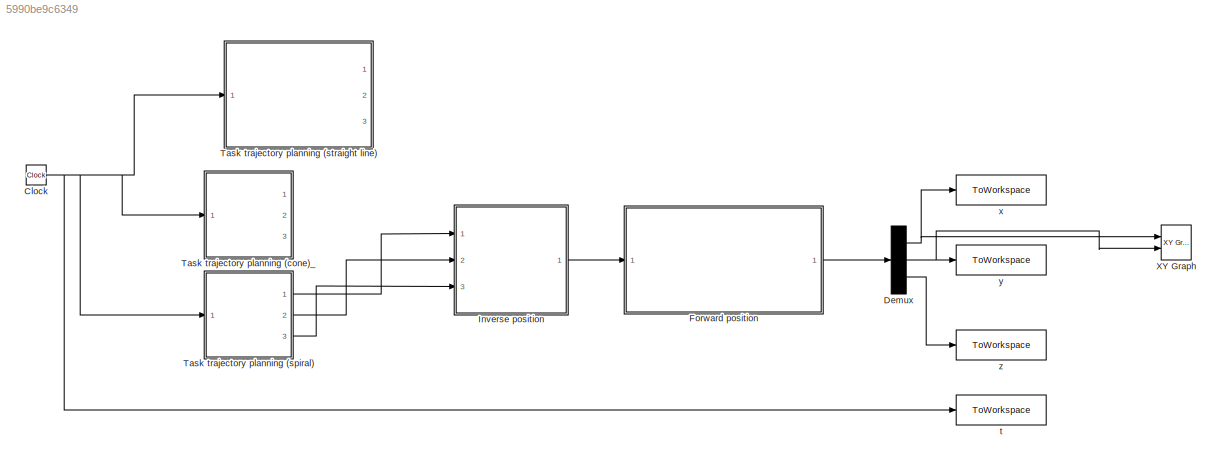
MODEL slx_5990be9c6349
KIND model
CONFIG AbsTol = auto
CONFIG EnableMultiTasking = off
CONFIG FixedStep = 0.01
CONFIG MaxStep = auto
CONFIG MinStep = auto
CONFIG RelTol = 1e-3
CONFIG SampleTimeConstraint = Unconstrained
CONFIG Solver = FixedStepAuto
CONFIG SolverName = FixedStepAuto
CONFIG StartTime = 0.0
CONFIG StopTime = 8
BLOCK [Clock] Clock
BLOCK [Demux] Demux
  DisplayOption = bar
  Outputs = 3
  Ports = [1, 3]
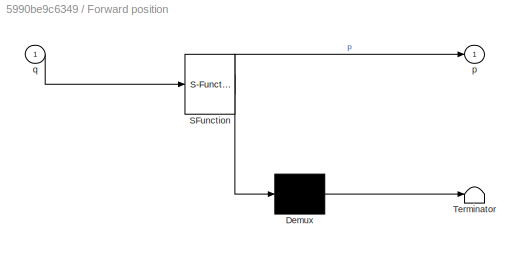
BLOCK [SubSystem] Forward position 
  ErrorFcn = Stateflow.Translate.translate
  PermitHierarchicalResolution = ExplicitOnly
  Ports = [1, 1]
  RequestExecContextInheritance = off
  SFBlockType = MATLAB Function
  TreatAsAtomicUnit = on
BLOCK [Demux] Forward position / Demux 
  Outputs = 1
  Ports = [1, 1]
BLOCK [S-Function] Forward position / SFunction 
  EnableBusSupport = on
  FunctionName = sf_sfun
  PortCounts = [1 2]
  Ports = [1, 2]
  SFcnIsStateOwnerBlock = off
  SFunctionDeploymentMode = off
  Tag = Stateflow S-Function 3
BLOCK [Terminator] Forward position / Terminator 
BLOCK [Outport] Forward position /p
  IconDisplay = Port number
  VectorParamsAs1DForOutWhenUnconnected = off
BLOCK [Inport] Forward position /q
  IconDisplay = Port number
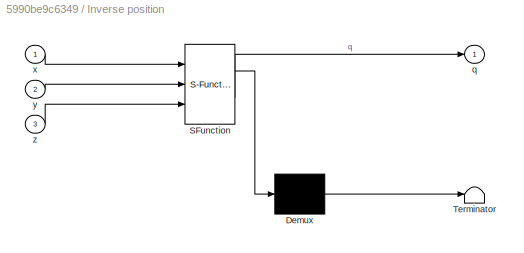
BLOCK [SubSystem] Inverse position 
  ErrorFcn = Stateflow.Translate.translate
  PermitHierarchicalResolution = ExplicitOnly
  Ports = [3, 1]
  RequestExecContextInheritance = off
  SFBlockType = MATLAB Function
  TreatAsAtomicUnit = on
BLOCK [Demux] Inverse position / Demux 
  Outputs = 1
  Ports = [1, 1]
BLOCK [S-Function] Inverse position / SFunction 
  EnableBusSupport = on
  FunctionName = sf_sfun
  PortCounts = [3 2]
  Ports = [3, 2]
  SFcnIsStateOwnerBlock = off
  SFunctionDeploymentMode = off
  Tag = Stateflow S-Function 1
BLOCK [Terminator] Inverse position / Terminator 
BLOCK [Outport] Inverse position /q
  IconDisplay = Port number
  VectorParamsAs1DForOutWhenUnconnected = off
BLOCK [Inport] Inverse position /x
  IconDisplay = Port number
BLOCK [Inport] Inverse position /y
  IconDisplay = Port number
  Port = 2
BLOCK [Inport] Inverse position /z
  IconDisplay = Port number
  Port = 3
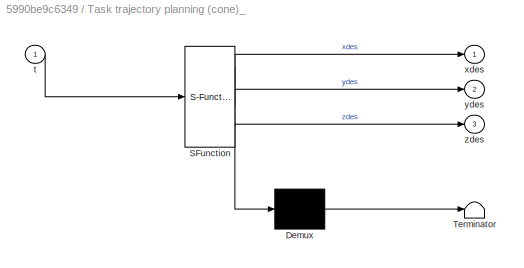
BLOCK [SubSystem] Task trajectory planning (cone)_ 
  ErrorFcn = Stateflow.Translate.translate
  PermitHierarchicalResolution = ExplicitOnly
  Ports = [1, 3]
  RequestExecContextInheritance = off
  SFBlockType = MATLAB Function
  TreatAsAtomicUnit = on
BLOCK [Demux] Task trajectory planning (cone)_ / Demux 
  Outputs = 1
  Ports = [1, 1]
BLOCK [S-Function] Task trajectory planning (cone)_ / SFunction 
  EnableBusSupport = on
  FunctionName = sf_sfun
  PortCounts = [1 4]
  Ports = [1, 4]
  SFcnIsStateOwnerBlock = off
  SFunctionDeploymentMode = off
  Tag = Stateflow S-Function 4
BLOCK [Terminator] Task trajectory planning (cone)_ / Terminator 
BLOCK [Inport] Task trajectory planning (cone)_ /t
  IconDisplay = Port number
BLOCK [Outport] Task trajectory planning (cone)_ /xdes
  IconDisplay = Port number
BLOCK [Outport] Task trajectory planning (cone)_ /ydes
  IconDisplay = Port number
  Port = 2
BLOCK [Outport] Task trajectory planning (cone)_ /zdes
  IconDisplay = Port number
  Port = 3
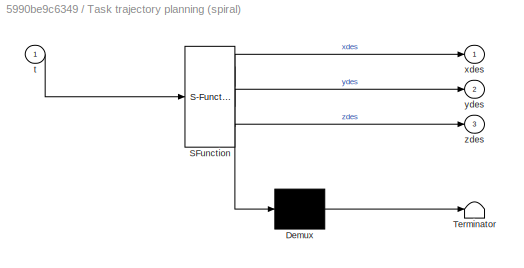
BLOCK [SubSystem] Task trajectory planning (spiral) 
  ErrorFcn = Stateflow.Translate.translate
  PermitHierarchicalResolution = ExplicitOnly
  Ports = [1, 3]
  RequestExecContextInheritance = off
  SFBlockType = MATLAB Function
  TreatAsAtomicUnit = on
BLOCK [Demux] Task trajectory planning (spiral) / Demux 
  Outputs = 1
  Ports = [1, 1]
BLOCK [S-Function] Task trajectory planning (spiral) / SFunction 
  EnableBusSupport = on
  FunctionName = sf_sfun
  PortCounts = [1 4]
  Ports = [1, 4]
  SFcnIsStateOwnerBlock = off
  SFunctionDeploymentMode = off
  Tag = Stateflow S-Function 5
BLOCK [Terminator] Task trajectory planning (spiral) / Terminator 
BLOCK [Inport] Task trajectory planning (spiral) /t
  IconDisplay = Port number
BLOCK [Outport] Task trajectory planning (spiral) /xdes
  IconDisplay = Port number
BLOCK [Outport] Task trajectory planning (spiral) /ydes
  IconDisplay = Port number
  Port = 2
BLOCK [Outport] Task trajectory planning (spiral) /zdes
  IconDisplay = Port number
  Port = 3
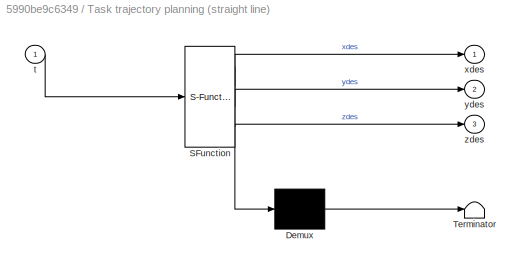
BLOCK [SubSystem] Task trajectory planning (straight line) 
  ErrorFcn = Stateflow.Translate.translate
  PermitHierarchicalResolution = ExplicitOnly
  Ports = [1, 3]
  RequestExecContextInheritance = off
  SFBlockType = MATLAB Function
  TreatAsAtomicUnit = on
BLOCK [Demux] Task trajectory planning (straight line) / Demux 
  Outputs = 1
  Ports = [1, 1]
BLOCK [S-Function] Task trajectory planning (straight line) / SFunction 
  EnableBusSupport = on
  FunctionName = sf_sfun
  PortCounts = [1 4]
  Ports = [1, 4]
  SFcnIsStateOwnerBlock = off
  SFunctionDeploymentMode = off
  Tag = Stateflow S-Function 2
BLOCK [Terminator] Task trajectory planning (straight line) / Terminator 
BLOCK [Inport] Task trajectory planning (straight line) /t
  IconDisplay = Port number
BLOCK [Outport] Task trajectory planning (straight line) /xdes
  IconDisplay = Port number
BLOCK [Outport] Task trajectory planning (straight line) /ydes
  IconDisplay = Port number
  Port = 2
BLOCK [Outport] Task trajectory planning (straight line) /zdes
  IconDisplay = Port number
  Port = 3
BLOCK [Reference] XY Graph  REF=simulink/Sinks/XY Graph
  Ports = [2]
  SourceBlock = simulink/Sinks/XY Graph
  SourceProductBaseCode = SL
  SourceProductName = Simulink
  SourceType = XY scope.
BLOCK [ToWorkspace] t
  FixptAsFi = on
  MaxDataPoints = inf
  Ports = [1]
  SampleTime = 0.01
  VariableName = t
BLOCK [ToWorkspace] x 
  FixptAsFi = on
  MaxDataPoints = inf
  Ports = [1]
  SampleTime = 0.01
  VariableName = x
BLOCK [ToWorkspace] y
  FixptAsFi = on
  MaxDataPoints = inf
  Ports = [1]
  SampleTime = 0.01
  VariableName = y
BLOCK [ToWorkspace] z
  FixptAsFi = on
  MaxDataPoints = inf
  Ports = [1]
  SampleTime = 0.01
  VariableName = z
NET Clock:1 -> Task trajectory planning (cone)_ :1, Task trajectory planning (spiral) :1, Task trajectory planning (straight line) :1, t:1
NET Demux:1 -> XY Graph:1, x :1
NET Demux:2 -> XY Graph:2, y:1
LINE Demux:3 -> z:1
LINE Forward position :1 -> Demux:1
LINE Inverse position :1 -> Forward position :1
LINE Task trajectory planning (spiral) :1 -> Inverse position :1
LINE Task trajectory planning (spiral) :2 -> Inverse position :2
LINE Task trajectory planning (spiral) :3 -> Inverse position :3
note: NET lines group one-source signal fan-out (src -> all destinations, sorted); 1:1 wires keep LINE
CHART Inverse position 
 states=1 transitions=1
  STATE_LABEL 'eML_blk_kernel()'
  STATE_LABEL 'SCRIPT:\nfunction q   = fcn(x, y, z)\n\nqnew=[0;0;0;0;0;0];\nqold=[50;50;50;50;50;50];\n\ni=100;\ndog=true;\n\nwhile (i>0 && dog)\n    q1=qold(1,1);\n    q2=qold(2,1);\n    q3=qold(3,1);\n    q4=qold(4,1);\n    q5=qold(5,1);\n    q6=qold(6,1);\n    \n    F= [ 10*cos((pi*(q1 - 90))/180)*sin((pi*(q2 - 90))/180) - 10*sin((pi*(q5 + 90))/180)*(sin((pi*(q1 - 90))/180)*sin((pi*(q4 + 90))/180) - cos((pi*(q1 - 90))/180)*co...<+3608ch>'
CHART Task trajectory planning (straight line) 
 states=1 transitions=1
  STATE_LABEL 'eML_blk_kernel()'
  STATE_LABEL 'SCRIPT:\nfunction [xdes, ydes, zdes] = fcn(t)\n\nxdes= 3-0.5*t;\nydes= 5-0.375*t;\nzdes= 7-0.375*t;\n\n\n'
CHART Forward position
 states=1 transitions=1
  STATE_LABEL 'eML_blk_kernel()'
  STATE_LABEL 'SCRIPT:\nfunction p  = fcn(q)\nq1= q(1);\nq2= q(2);\nq3= q(3);\nq4= q(4);\nq5= q(5);\nq6= q(6);\nL1=10;\nL2=10;\nL3=10;\nL4=10;\npp= [ sin((pi*q6)/180)*(cos((pi*(q4 + 90))/180)*sin((pi*(q1 - 90))/180) + cos((pi*(q1 - 90))/180)*cos((pi*(q2 - 90))/180)*sin((pi*(q4 + 90))/180)) - cos((pi*q6)/180)*(cos((pi*(q5 + 90))/180)*(sin((pi*(q1 - 90))/180)*sin((pi*(q4 + 90))/180) - cos((pi*(q1 - 90))/180)*cos((pi*(q2 - 90)...<+3608ch>'
CHART Task trajectory planning (cone)_
 states=1 transitions=1
  STATE_LABEL 'eML_blk_kernel()'
  STATE_LABEL 'SCRIPT:\nfunction [xdes,ydes,zdes]= fcn(t)\nxdes=(20-2.375*t)*cos(pi*t);\nydes=(20-2.375*t)*sin(pi*t);\nzdes=10+3.75*t;\n'
CHART Task trajectory planning (spiral)
 states=1 transitions=1
  STATE_LABEL 'eML_blk_kernel()'
  STATE_LABEL 'SCRIPT:\nfunction [xdes,ydes,zdes]= fcn(t)\nxdes=(20-0.25*t)*cos(pi*t);\nydes=(5-0.25*t)*sin(pi*t);\nzdes=10+0.5*t;\n'
